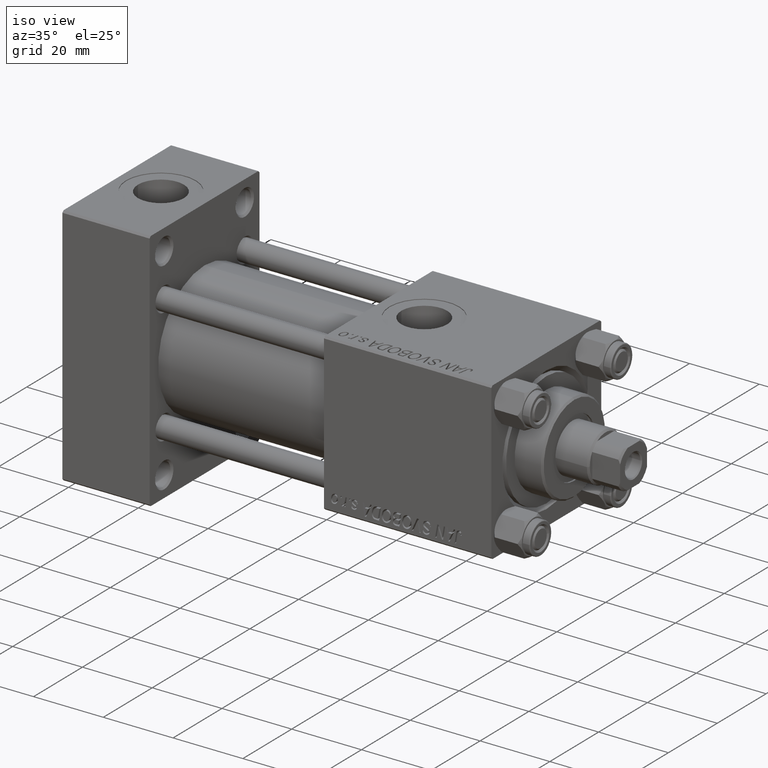
[diagram: clean part render]
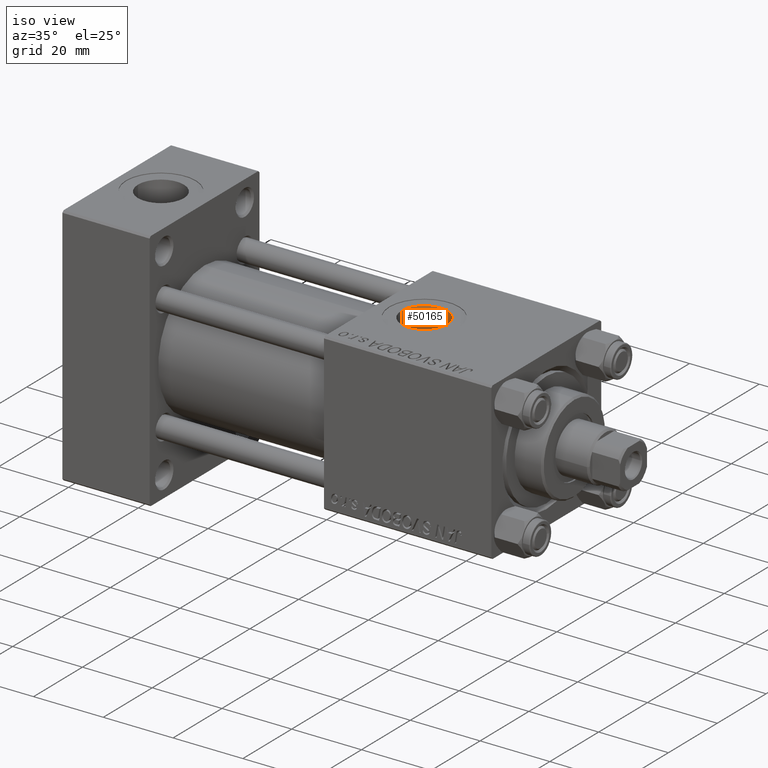
[diagram: same view with one face highlighted and labeled with its STEP entity id]
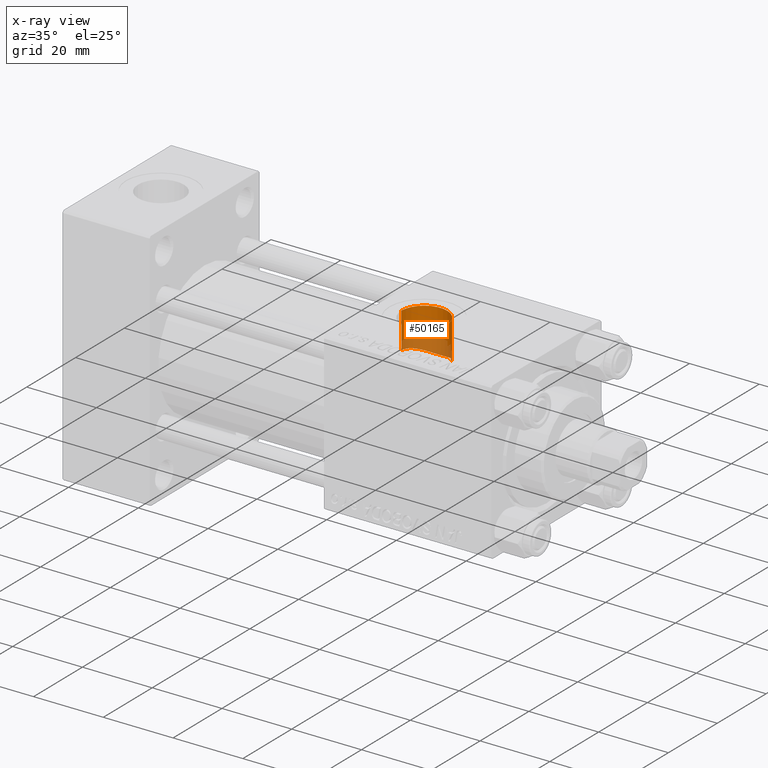
[diagram: x-ray of the same camera — body ghosted, the highlighted face saturated]
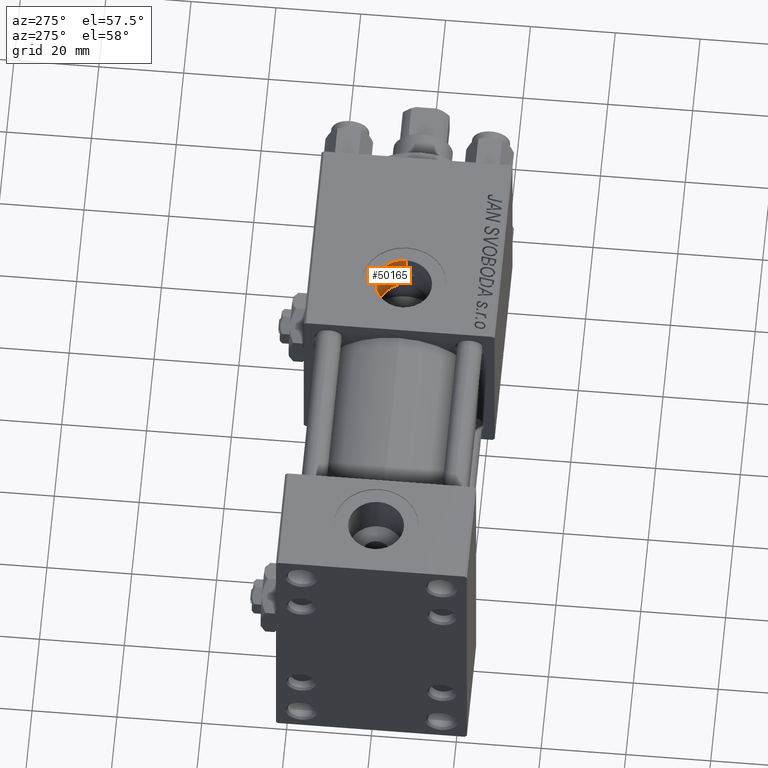
[diagram: same view with one face highlighted and labeled with its STEP entity id]
A machine part, iso view. The second image highlights one B-rep face of the part: STEP entity #50165.
The next image is the same camera in x-ray: the body ghosted, the highlighted face saturated — about 31% of this face is hidden behind the body in this view.
A second angle (auxiliary view) of the same face is appended — the face is thin or edge-on in the first view.
In plain terms, the highlighted cylindrical surface (edge-blend (fillet) strip) has radius 6.58 mm, axis along (0, 0, 1).
Its self-contained STEP definition (entity closure, byte-faithful):
#429 = VERTEX_POINT ( 'NONE', #4707 ) ;
#782 = DIRECTION ( 'NONE',  ( -0.000000000000000000, -0.000000000000000000, 1.000000000000000000 ) ) ;
#2466 = EDGE_LOOP ( 'NONE', ( #23386, #45244, #36229, #22929, #20039, #21845 ) ) ;
#2979 = CARTESIAN_POINT ( 'NONE',  ( 94.30000000000001137, 1.899052395275078853, 16.39035081991841025 ) ) ;
#3049 = CARTESIAN_POINT ( 'NONE',  ( 85.16320872901938799, 5.940301670670840473, 10.42694291910974691 ) ) ;
#3305 = CARTESIAN_POINT ( 'NONE',  ( 93.47922161013028131, 3.663950190651507732, 11.43164576559327728 ) ) ;
#3563 = CARTESIAN_POINT ( 'NONE',  ( 81.71629779899160440, 1.962378304040146570, 11.84003675942547495 ) ) ;
#3815 = CARTESIAN_POINT ( 'NONE',  ( 85.52064445426732675, 6.098144367882023076, 10.33542248025771038 ) ) ;
#4071 = CARTESIAN_POINT ( 'NONE',  ( 81.42000000000000171, 1.469576210210131641E-15, 12.00000000000000178 ) ) ;
#4707 = CARTESIAN_POINT ( 'NONE',  ( 94.30000000000001137, 1.899052395275078853, 11.84878052796995718 ) ) ;
#5777 = CARTESIAN_POINT ( 'NONE',  ( 88.00000000000001421, -5.204170427930420494E-15, 22.29999999999999716 ) ) ;
#6602 = CARTESIAN_POINT ( 'NONE',  ( 94.58000000000001251, 2.021162037415287302E-15, 16.50000000000000000 ) ) ;
#7245 = CARTESIAN_POINT ( 'NONE',  ( 92.18893691967822690, 5.078008749725821502, 10.87340577274959053 ) ) ;
#7504 = CARTESIAN_POINT ( 'NONE',  ( 88.04338309676343499, 6.582852539851463014, 10.03325114525027750 ) ) ;
#9566 = CARTESIAN_POINT ( 'NONE',  ( 94.46252323665214590, 1.278516620530516956, 16.45344826064652821 ) ) ;
#10356 = CARTESIAN_POINT ( 'NONE',  ( 94.39288924062451258, 1.590897540048185288, 16.42605488887726750 ) ) ;
#11186 = CARTESIAN_POINT ( 'NONE',  ( 86.64933611902863220, 6.452212448331264838, 10.11798947633289458 ) ) ;
#11445 = CARTESIAN_POINT ( 'NONE',  ( 92.75461516124364891, 4.564627351372475772, 11.10155823484087811 ) ) ;
#11961 = CARTESIAN_POINT ( 'NONE',  ( 87.24099402833643069, 6.539116494941757729, 10.06186586056367283 ) ) ;
#11969 = EDGE_CURVE ( 'NONE', #21114, #33592, #46942, .T. ) ;
#12210 = CARTESIAN_POINT ( 'NONE',  ( 85.70524222956264282, 6.170038997559275984, 10.29252570320665328 ) ) ;
#12443 = CARTESIAN_POINT ( 'NONE',  ( 94.58000000000001251, -5.204170427930420494E-15, 22.29999999999999716 ) ) ;
#13408 = CIRCLE ( 'NONE', #51169, 6.580000000000002736 ) ;
#14883 = CARTESIAN_POINT ( 'NONE',  ( 81.42000000000000171, -4.398352834091461452E-15, -18.61105048082993818 ) ) ;
#15136 = CARTESIAN_POINT ( 'NONE',  ( 81.98561383412462078, 2.697465198051454127, 11.69882456468388554 ) ) ;
#15639 = LINE ( 'NONE', #43492, #24800 ) ;
#16167 = CARTESIAN_POINT ( 'NONE',  ( 94.18477677513209301, 2.281298992827691219, 11.78751630630980785 ) ) ;
#16293 = VECTOR ( 'NONE', #42490, 1000.000000000000000 ) ;
#18194 = B_SPLINE_CURVE_WITH_KNOTS ( 'NONE', 3,
 ( #46350, #18247, #49783, #9566, #10356, #50311 ),
 .UNSPECIFIED., .F., .F.,
 ( 4, 2, 4 ),
 ( 0.001922561461481097408, 0.002880296703329214385, 0.003838031945177331362 ),
 .UNSPECIFIED. ) ;
#18247 = CARTESIAN_POINT ( 'NONE',  ( 94.57999999999999829, 0.3226077776615788317, 16.49999999999999645 ) ) ;
#19084 = CARTESIAN_POINT ( 'NONE',  ( 82.45420827143600206, 3.546596150375931789, 11.46524487954329885 ) ) ;
#19173 = EDGE_CURVE ( 'NONE', #429, #21114, #36284, .T. ) ;
#19337 = CARTESIAN_POINT ( 'NONE',  ( 84.98945031834362851, 5.854084355677481533, 10.47573476137173998 ) ) ;
#19851 = CARTESIAN_POINT ( 'NONE',  ( 87.84379216343921826, 6.581218343749212885, 10.03432783490171687 ) ) ;
#20039 = ORIENTED_EDGE ( 'NONE', *, *, #31917, .T. ) ;
#21114 = VERTEX_POINT ( 'NONE', #48689 ) ;
#21471 = CARTESIAN_POINT ( 'NONE',  ( 81.42000000000000171, -4.398352834091461452E-15, 22.29999999999999716 ) ) ;
#21845 = ORIENTED_EDGE ( 'NONE', *, *, #45292, .T. ) ;
#21850 = FACE_OUTER_BOUND ( 'NONE', #2466, .T. ) ;
#22929 = ORIENTED_EDGE ( 'NONE', *, *, #29695, .F. ) ;
#23018 = CARTESIAN_POINT ( 'NONE',  ( 88.63868773215152430, 6.560960036370732773, 10.04759214048446836 ) ) ;
#23386 = ORIENTED_EDGE ( 'NONE', *, *, #11969, .F. ) ;
#23520 = DIRECTION ( 'NONE',  ( -0.000000000000000000, -0.000000000000000000, 1.000000000000000000 ) ) ;
#23536 = CARTESIAN_POINT ( 'NONE',  ( 84.16042478392877513, 5.357485016297846236, 10.74100582260113690 ) ) ;
#23788 = CARTESIAN_POINT ( 'NONE',  ( 87.44221154047806976, 6.559398433601078438, 10.04860498654695355 ) ) ;
#24036 = CARTESIAN_POINT ( 'NONE',  ( 83.56113700165015246, 4.872522839515966986, 10.96952017908726162 ) ) ;
#24413 = LINE ( 'NONE', #44919, #45478 ) ;
#24800 = VECTOR ( 'NONE', #23520, 1000.000000000000000 ) ;
#27212 = CARTESIAN_POINT ( 'NONE',  ( 89.03095050380548514, 6.510856269794934370, 10.08062642345328541 ) ) ;
#27473 = CARTESIAN_POINT ( 'NONE',  ( 91.88529033867187934, 5.313933040936642094, 10.76007628214586553 ) ) ;
#27725 = CARTESIAN_POINT ( 'NONE',  ( 94.30000000000001137, 1.899052395275078853, 11.84878052796995718 ) ) ;
#27977 = CARTESIAN_POINT ( 'NONE',  ( 81.45594931342616007, 0.7944237263419202666, 11.98017270223897768 ) ) ;
#29695 = EDGE_CURVE ( 'NONE', #32480, #30962, #18194, .T. ) ;
#29729 = DIRECTION ( 'NONE',  ( 1.000000000000000000, 0.000000000000000000, 0.000000000000000000 ) ) ;
#30774 = CYLINDRICAL_SURFACE ( 'NONE', #47131, 6.580000000000002736 ) ;
#30962 = VERTEX_POINT ( 'NONE', #2979 ) ;
#31163 = CARTESIAN_POINT ( 'NONE',  ( 93.01155594446150587, 4.281437546902487234, 11.21500550341173863 ) ) ;
#31419 = CARTESIAN_POINT ( 'NONE',  ( 93.68578075181309828, 3.334439790209549948, 11.53293512199652149 ) ) ;
#31917 = EDGE_CURVE ( 'NONE', #32480, #44560, #15639, .T. ) ;
#31920 = CARTESIAN_POINT ( 'NONE',  ( 94.03789257063225193, 2.643944927135362555, 11.71053527662117233 ) ) ;
#32480 = VERTEX_POINT ( 'NONE', #6602 ) ;
#33592 = VERTEX_POINT ( 'NONE', #21471 ) ;
#33887 = DIRECTION ( 'NONE',  ( 1.000000000000000000, 0.000000000000000000, 0.000000000000000000 ) ) ;
#35107 = CARTESIAN_POINT ( 'NONE',  ( 82.15480420465905809, 3.046487603127512767, 11.61204766141661970 ) ) ;
#35361 = CARTESIAN_POINT ( 'NONE',  ( 90.90036750558620327, 5.918981686858803215, 10.44010423036057489 ) ) ;
#35614 = CARTESIAN_POINT ( 'NONE',  ( 82.56220931812610786, 3.710026521228324548, 11.41328489595129092 ) ) ;
#35870 = CARTESIAN_POINT ( 'NONE',  ( 84.48210468445529386, 5.574052804316226961, 10.62898043420413785 ) ) ;
#36121 = CARTESIAN_POINT ( 'NONE',  ( 91.72673468970529598, 5.426328151739149064, 10.70368258044637955 ) ) ;
#36229 = ORIENTED_EDGE ( 'NONE', *, *, #50467, .T. ) ;
#36284 = B_SPLINE_CURVE_WITH_KNOTS ( 'NONE', 3,
 ( #27725, #16167, #31920, #31419, #3305, #31163, #11445, #44277, #7245, #27473, #36121, #43764, #35361, #39040, #51161, #48212, #44021, #27212, #23018, #7504, #19851, #23788, #11961, #11186, #39821, #12210, #3815, #3049, #19337, #35870, #23536, #24036, #51929, #47965, #51424, #35614, #19084, #35107, #15136, #39562, #3563, #51677, #47199, #27977, #40077, #4071 ),
 .UNSPECIFIED., .F., .F.,
 ( 4, 2, 2, 2, 2, 2, 2, 2, 2, 2, 2, 2, 2, 2, 2, 2, 2, 2, 2, 2, 2, 2, 4 ),
 ( 0.000000000000000000, 0.001192670592735499196, 0.002385341185470998392, 0.003578011778206497372, 0.004174347074574247078, 0.004770682370941996785, 0.005963352963677493596, 0.006559688260045259782, 0.007156023556413025968, 0.008348694149148599974, 0.008945029445516386110, 0.009541364741884173981, 0.01073403533461970635, 0.01133037063098747514, 0.01192670592735524046, 0.01311937652009077630, 0.01431204711282631041, 0.01490838240919408093, 0.01550471770556184799, 0.01669738829829740118, 0.01729372359466517864, 0.01789005889103295957, 0.01908272948376851796 ),
 .UNSPECIFIED. ) ;
#39040 = CARTESIAN_POINT ( 'NONE',  ( 90.36442671337262311, 6.143566170091877332, 10.30844919719951314 ) ) ;
#39562 = CARTESIAN_POINT ( 'NONE',  ( 81.77783752250836358, 2.149251954852690716, 11.80743069880359108 ) ) ;
#39821 = CARTESIAN_POINT ( 'NONE',  ( 86.26571117503742414, 6.359577037598432625, 10.17731036340830997 ) ) ;
#40077 = CARTESIAN_POINT ( 'NONE',  ( 81.42000000000001592, 0.3987589306235782005, 12.00000000000000711 ) ) ;
#42490 = DIRECTION ( 'NONE',  ( -0.000000000000000000, -0.000000000000000000, 1.000000000000000000 ) ) ;
#42860 = CARTESIAN_POINT ( 'NONE',  ( 88.00000000000001421, -5.204170427930420494E-15, -18.61105048082993818 ) ) ;
#43492 = CARTESIAN_POINT ( 'NONE',  ( 94.58000000000001251, -5.204170427930420494E-15, -18.61105048082993818 ) ) ;
#43764 = CARTESIAN_POINT ( 'NONE',  ( 91.24045236004089077, 5.739740685217719296, 10.54091119589232228 ) ) ;
#44021 = CARTESIAN_POINT ( 'NONE',  ( 89.61262682924858325, 6.382418177023026828, 10.16205234327171958 ) ) ;
#44277 = CARTESIAN_POINT ( 'NONE',  ( 92.33470223076434991, 4.954109770454547146, 10.93054897555023075 ) ) ;
#44560 = VERTEX_POINT ( 'NONE', #12443 ) ;
#44919 = CARTESIAN_POINT ( 'NONE',  ( 94.30000000000001137, 1.899052395275078853, -18.61105048082993818 ) ) ;
#45244 = ORIENTED_EDGE ( 'NONE', *, *, #19173, .F. ) ;
#45292 = EDGE_CURVE ( 'NONE', #44560, #33592, #13408, .T. ) ;
#45478 = VECTOR ( 'NONE', #782, 1000.000000000000000 ) ;
#46350 = CARTESIAN_POINT ( 'NONE',  ( 94.58000000000001251, 2.021162037415287302E-15, 16.50000000000000000 ) ) ;
#46548 = DIRECTION ( 'NONE',  ( -0.000000000000000000, -0.000000000000000000, 1.000000000000000000 ) ) ;
#46942 = LINE ( 'NONE', #14883, #16293 ) ;
#47131 = AXIS2_PLACEMENT_3D ( 'NONE', #42860, #46548, #29729 ) ;
#47199 = CARTESIAN_POINT ( 'NONE',  ( 81.56395315102132315, 1.383303317825538947, 11.92163510970725149 ) ) ;
#47965 = CARTESIAN_POINT ( 'NONE',  ( 82.90943709968695430, 4.173635198167841232, 11.25187747779290959 ) ) ;
#48212 = CARTESIAN_POINT ( 'NONE',  ( 89.80612331289050587, 6.330331454284476855, 10.19469476613941339 ) ) ;
#48689 = CARTESIAN_POINT ( 'NONE',  ( 81.42000000000000171, 1.469576210210131641E-15, 12.00000000000000178 ) ) ;
#49783 = CARTESIAN_POINT ( 'NONE',  ( 94.55609068154466001, 0.6453575044926698201, 16.49042383039745019 ) ) ;
#49933 = DIRECTION ( 'NONE',  ( 0.000000000000000000, 0.000000000000000000, 1.000000000000000000 ) ) ;
#50165 = ADVANCED_FACE ( 'NONE', ( #21850 ), #30774, .F. ) ;
#50311 = CARTESIAN_POINT ( 'NONE',  ( 94.30000000000001137, 1.899052395275078853, 16.39035081991841025 ) ) ;
#50467 = EDGE_CURVE ( 'NONE', #429, #30962, #24413, .T. ) ;
#51161 = CARTESIAN_POINT ( 'NONE',  ( 90.18144946988462607, 6.210994763547159181, 10.26783529976223974 ) ) ;
#51169 = AXIS2_PLACEMENT_3D ( 'NONE', #5777, #49933, #33887 ) ;
#51424 = CARTESIAN_POINT ( 'NONE',  ( 82.78969099161483314, 4.023250467623465276, 11.30667168441425297 ) ) ;
#51677 = CARTESIAN_POINT ( 'NONE',  ( 81.60938533297499475, 1.579837376672092564, 11.89712204425859632 ) ) ;
#51929 = CARTESIAN_POINT ( 'NONE',  ( 83.28639562774000638, 4.607057570676574620, 11.08471608617320037 ) ) ;